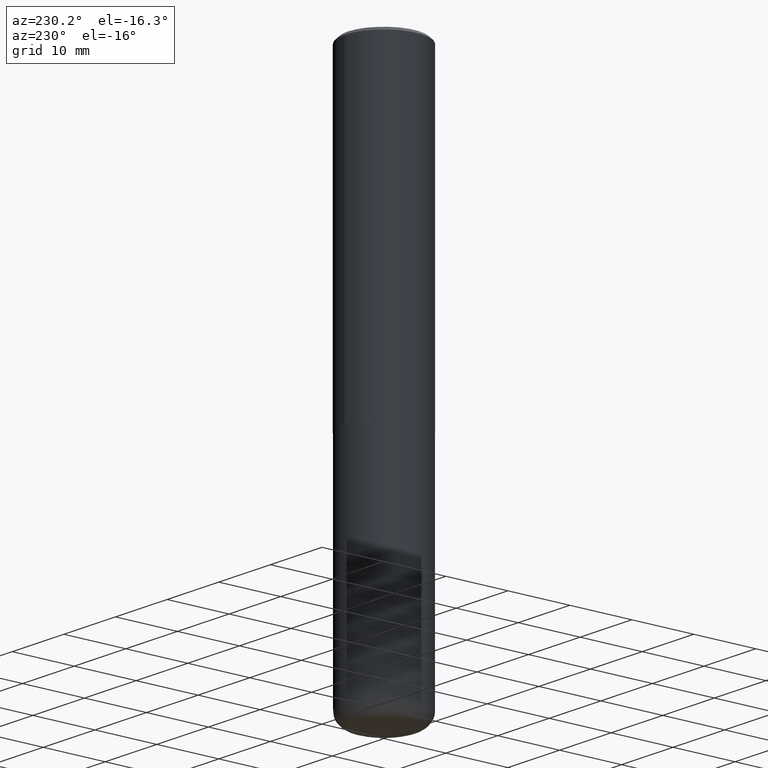
[diagram: clean part render]
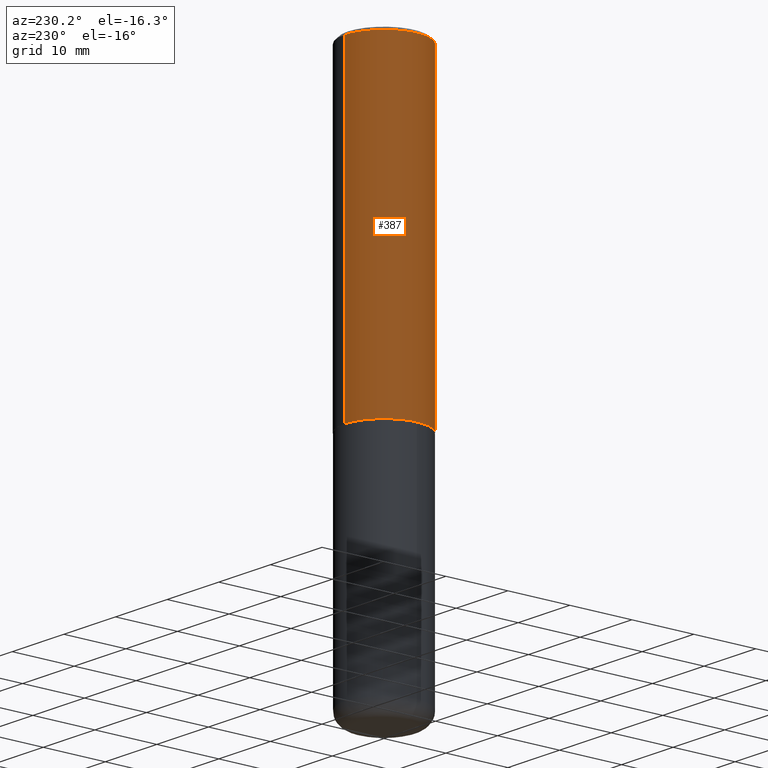
[diagram: same view with one face highlighted and labeled with its STEP entity id]
A machine part, auxiliary view. The second image highlights one B-rep face of the part: STEP entity #387.
In plain terms, the highlighted cylindrical surface (partial cylindrical patch) has radius 6.35 mm, axis along (-0, 0, 1).
Its self-contained STEP definition (entity closure, byte-faithful):
#6 = CARTESIAN_POINT ( 'NONE',  ( 1.776356839400276103E-15, 0.2499999999999933109, -1.999000000000000554 ) ) ;
#11 = VERTEX_POINT ( 'NONE', #124 ) ;
#29 = VECTOR ( 'NONE', #402, 39.37007874015748143 ) ;
#30 = EDGE_CURVE ( 'NONE', #239, #11, #305, .T. ) ;
#43 = AXIS2_PLACEMENT_3D ( 'NONE', #112, #274, #86 ) ;
#51 = CARTESIAN_POINT ( 'NONE',  ( -1.715124499442882299E-15, -0.2500000000000000555, -0.01999999999999918510 ) ) ;
#74 = EDGE_CURVE ( 'NONE', #11, #327, #404, .T. ) ;
#86 = DIRECTION ( 'NONE',  ( -6.982962677686265922E-15, -1.000000000000000000, 3.483106191921935554E-15 ) ) ;
#112 = CARTESIAN_POINT ( 'NONE',  ( 4.891474366573836672E-31, -6.982194015116674235E-17, -0.02000000000000005593 ) ) ;
#120 = CARTESIAN_POINT ( 'NONE',  ( 1.776356839400251254E-15, 0.2500000000000001110, -8.727742518895823935E-16 ) ) ;
#124 = CARTESIAN_POINT ( 'NONE',  ( 1.745740669421566875E-15, 0.2499999999999999167, -0.02000000000000092676 ) ) ;
#134 = CARTESIAN_POINT ( 'NONE',  ( 0.000000000000000000, 0.000000000000000000, 0.000000000000000000 ) ) ;
#137 = CARTESIAN_POINT ( 'NONE',  ( -1.745740669421567467E-15, -0.2500000000000001110, 8.727742518895823935E-16 ) ) ;
#169 = LINE ( 'NONE', #137, #286 ) ;
#172 = AXIS2_PLACEMENT_3D ( 'NONE', #310, #197, #384 ) ;
#181 = ORIENTED_EDGE ( 'NONE', *, *, #74, .F. ) ;
#195 = EDGE_CURVE ( 'NONE', #239, #204, #381, .T. ) ;
#197 = DIRECTION ( 'NONE',  ( -2.445737183286911680E-29, 3.491097007558327602E-15, 1.000000000000000000 ) ) ;
#199 = CYLINDRICAL_SURFACE ( 'NONE', #397, 0.2500000000000001110 ) ;
#204 = VERTEX_POINT ( 'NONE', #289 ) ;
#205 = DIRECTION ( 'NONE',  ( -2.445737183286911680E-29, 3.491097007558327602E-15, 1.000000000000000000 ) ) ;
#212 = ORIENTED_EDGE ( 'NONE', *, *, #195, .T. ) ;
#239 = VERTEX_POINT ( 'NONE', #6 ) ;
#241 = EDGE_CURVE ( 'NONE', #204, #327, #169, .T. ) ;
#260 = DIRECTION ( 'NONE',  ( -6.982962677686266711E-15, -1.000000000000000000, 3.491097007558327996E-15 ) ) ;
#262 = DIRECTION ( 'NONE',  ( -2.445737183286911680E-29, 3.491097007558327602E-15, 1.000000000000000000 ) ) ;
#274 = DIRECTION ( 'NONE',  ( -2.445737183286911680E-29, 3.491097007558327602E-15, 1.000000000000000000 ) ) ;
#286 = VECTOR ( 'NONE', #262, 39.37007874015748143 ) ;
#288 = FACE_OUTER_BOUND ( 'NONE', #334, .T. ) ;
#289 = CARTESIAN_POINT ( 'NONE',  ( -1.745740669421519543E-15, -0.2500000000000072164, -1.998999999999998778 ) ) ;
#305 = LINE ( 'NONE', #120, #29 ) ;
#310 = CARTESIAN_POINT ( 'NONE',  ( 4.889028629390535480E-29, -6.978702918109095527E-15, -1.998999999999999666 ) ) ;
#327 = VERTEX_POINT ( 'NONE', #51 ) ;
#334 = EDGE_LOOP ( 'NONE', ( #360, #212, #389, #181 ) ) ;
#360 = ORIENTED_EDGE ( 'NONE', *, *, #30, .F. ) ;
#381 = CIRCLE ( 'NONE', #172, 0.2500000000000002776 ) ;
#384 = DIRECTION ( 'NONE',  ( -6.982962677686265922E-15, -1.000000000000000000, 3.278217592397112312E-15 ) ) ;
#387 = ADVANCED_FACE ( 'NONE', ( #288 ), #199, .T. ) ;
#389 = ORIENTED_EDGE ( 'NONE', *, *, #241, .T. ) ;
#397 = AXIS2_PLACEMENT_3D ( 'NONE', #134, #205, #260 ) ;
#402 = DIRECTION ( 'NONE',  ( -2.445737183286911680E-29, 3.491097007558327602E-15, 1.000000000000000000 ) ) ;
#404 = CIRCLE ( 'NONE', #43, 0.2500000000000000000 ) ;